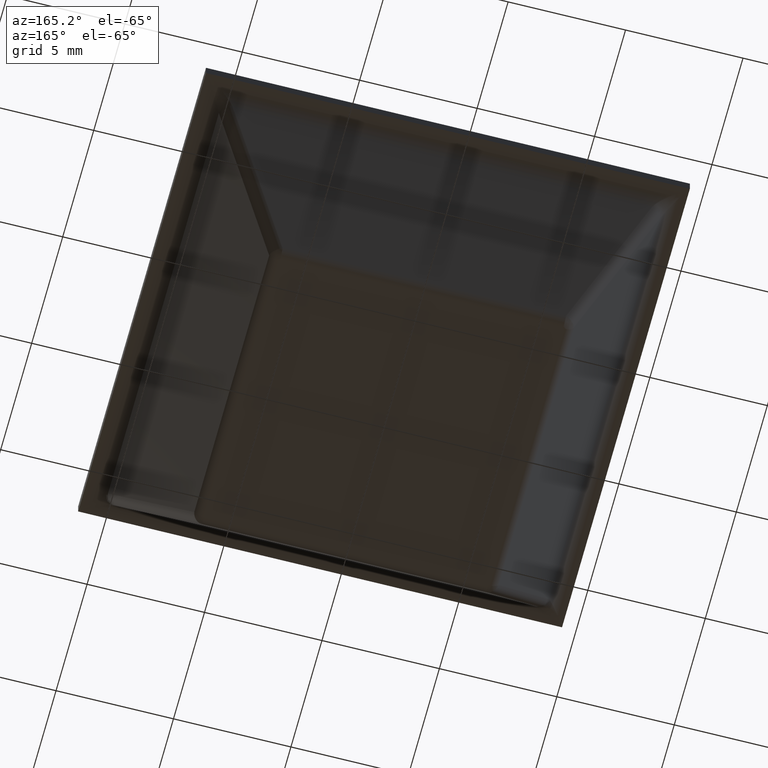
[diagram: clean part render]
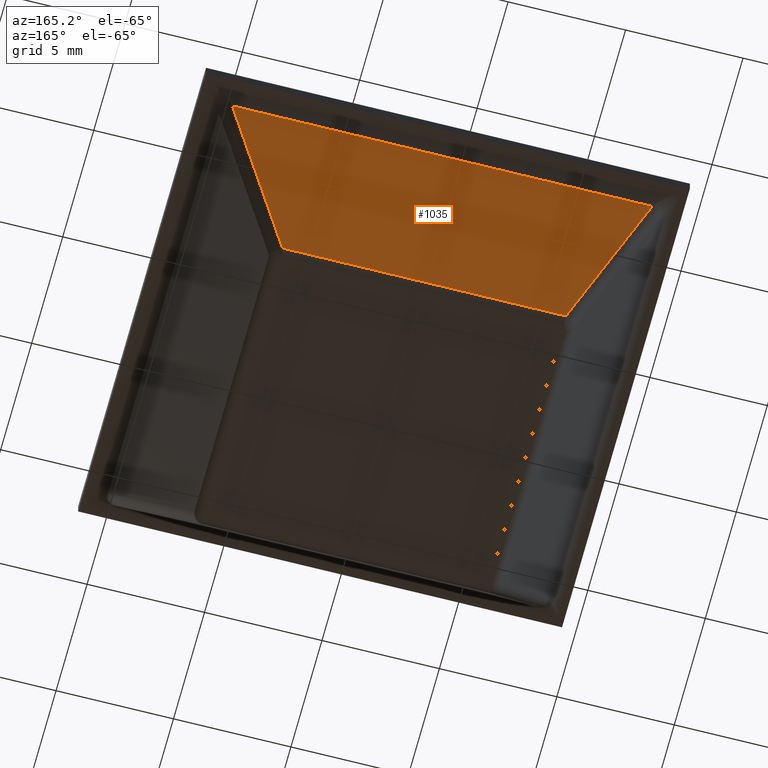
[diagram: same view with one face highlighted and labeled with its STEP entity id]
A machine part, auxiliary view. The second image highlights one B-rep face of the part: STEP entity #1035.
In plain terms, the highlighted face is a freeform B-spline surface patch.
Its self-contained STEP definition (entity closure, byte-faithful):
#266=CARTESIAN_POINT('',(6.031465045455890,6.484618936203209,0.288690863187423));
#267=VERTEX_POINT('',#266);
#311=CARTESIAN_POINT('',(8.938393236846100,9.391547127593508,6.522618273625180));
#312=VERTEX_POINT('',#311);
#334=CARTESIAN_POINT('',(8.938393236846100,9.391547127593508,6.522618273625180));
#335=CARTESIAN_POINT('',(6.031465045455890,6.484618936203209,0.288690863187423));
#336=QUASI_UNIFORM_CURVE('',1,(#334,#335),.UNSPECIFIED.,.F.,.U.);
#337=EDGE_CURVE('',#312,#267,#336,.T.);
#438=CARTESIAN_POINT('',(-8.938393236846070,9.391547127593508,6.522618273625180));
#439=VERTEX_POINT('',#438);
#500=CARTESIAN_POINT('',(-6.031465045455790,6.484618936203209,0.288690863187423));
#501=VERTEX_POINT('',#500);
#523=CARTESIAN_POINT('',(-6.031465045455790,6.484618936203209,0.288690863187423));
#524=CARTESIAN_POINT('',(-8.938393236846070,9.391547127593508,6.522618273625180));
#525=QUASI_UNIFORM_CURVE('',1,(#523,#524),.UNSPECIFIED.,.F.,.U.);
#526=EDGE_CURVE('',#501,#439,#525,.T.);
#782=CARTESIAN_POINT('',(-8.938393236846070,9.391547127593508,6.522618273625180));
#783=CARTESIAN_POINT('',(8.938393236846100,9.391547127593508,6.522618273625180));
#784=QUASI_UNIFORM_CURVE('',1,(#782,#783),.UNSPECIFIED.,.F.,.U.);
#785=EDGE_CURVE('',#439,#312,#784,.T.);
#962=CARTESIAN_POINT('',(6.031465045455890,6.484618936203209,0.288690863187423));
#963=CARTESIAN_POINT('',(-6.031465045455790,6.484618936203209,0.288690863187423));
#964=QUASI_UNIFORM_CURVE('',1,(#962,#963),.UNSPECIFIED.,.F.,.U.);
#965=EDGE_CURVE('',#267,#501,#964,.T.);
#1024=CARTESIAN_POINT('',(-9.831339190001753,9.536748202021840,6.834002971941666));
#1025=CARTESIAN_POINT('',(-9.831339190001753,6.339418017714670,-0.022693500715145));
#1026=CARTESIAN_POINT('',(9.831339190001783,9.536748202021840,6.834002971941666));
#1027=CARTESIAN_POINT('',(9.831339190001783,6.339418017714670,-0.022693500715145));
#1028=B_SPLINE_SURFACE_WITH_KNOTS('',1,1,((#1024,#1026),(#1025,#1027)),.UNSPECIFIED.,.F.,.F.,.U.,(2,2),(2,2),(0.0,7.565527531218565),(0.0,19.662678380003531),.UNSPECIFIED.);
#1029=ORIENTED_EDGE('',*,*,#965,.T.);
#1030=ORIENTED_EDGE('',*,*,#526,.T.);
#1031=ORIENTED_EDGE('',*,*,#785,.T.);
#1032=ORIENTED_EDGE('',*,*,#337,.T.);
#1033=EDGE_LOOP('',(#1029,#1030,#1031,#1032));
#1034=FACE_OUTER_BOUND('',#1033,.T.);
#1035=ADVANCED_FACE('',(#1034),#1028,.F.);